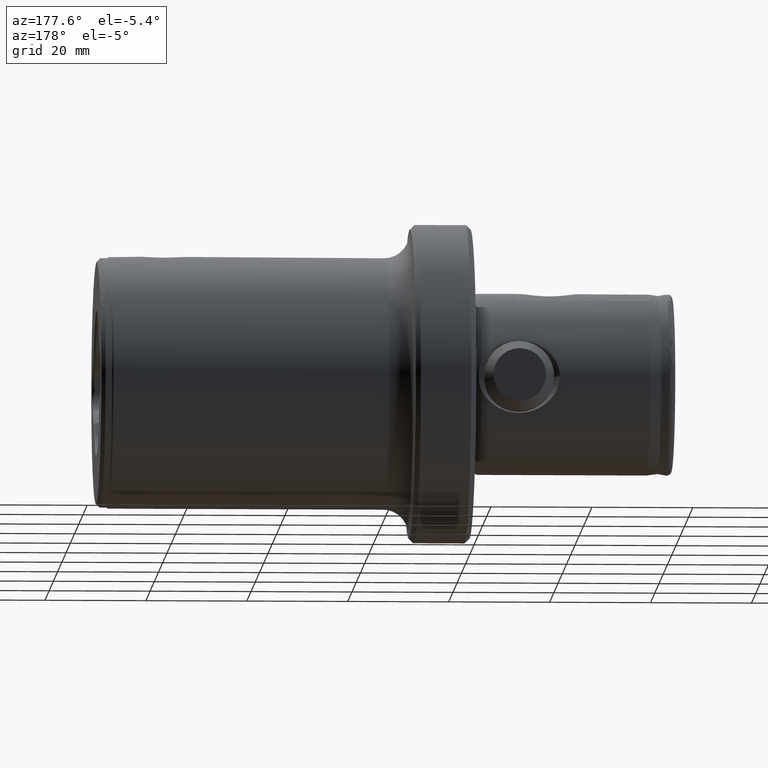
[diagram: clean part render]
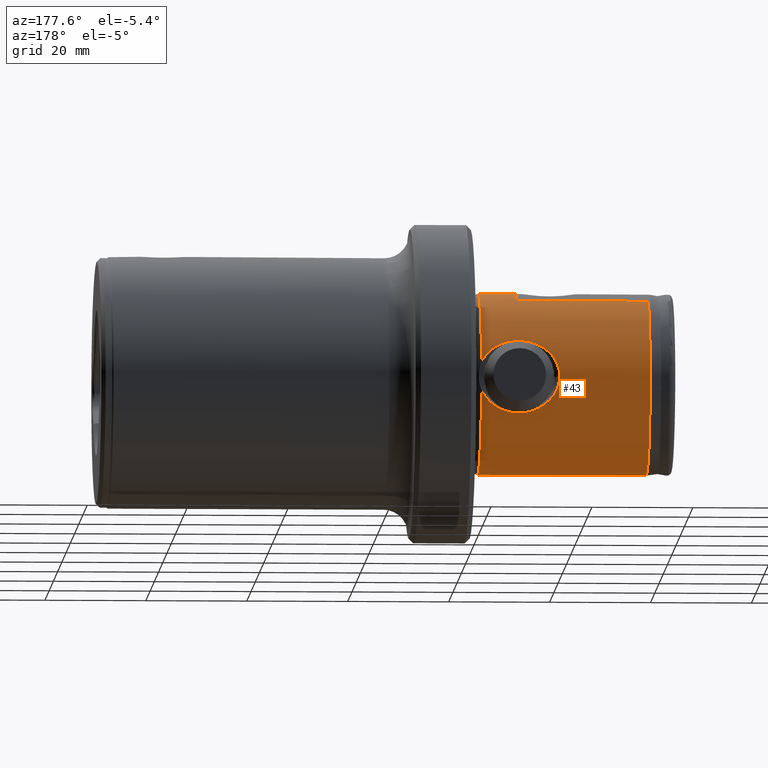
[diagram: same view with one face highlighted and labeled with its STEP entity id]
A machine part, auxiliary view. The second image highlights one B-rep face of the part: STEP entity #43.
In plain terms, the highlighted cylindrical surface (partial cylindrical patch) has radius 18 mm, axis along (-1, -0, -0).
Its self-contained STEP definition (entity closure, byte-faithful):
#11 = B_SPLINE_CURVE_WITH_KNOTS ( 'NONE', 3,
 ( #2662, #2663, #2664, #2665, #2666, #2667, #2668, #2669, #2670, #2671, #2672, #2673, #2674, #2675, #2676, #2677, #2678, #2679, #2680, #2681, #2682, #2683, #2684, #2685, #2686, #2687, #2688, #2689, #2690, #2691, #2692, #2693, #2694, #2695, #2696, #2697, #2698, #2699, #2700, #2701, #2702, #2703, #2704, #2705 ),
 .UNSPECIFIED., .F., .F.,
 ( 4, 2, 2, 2, 2, 2, 2, 2, 2, 2, 2, 2, 2, 2, 2, 2, 2, 2, 2, 2, 2, 4 ),
 ( 0.02115246160344184300, 0.02181163685404289100, 0.02247081210464393900, 0.02312998735524498700, 0.02378916260584603600, 0.02510751310704813600, 0.02576668835764918400, 0.02642586360825023600, 0.02774421410945232500, 0.02906256461065441500, 0.03038091511185650500, 0.03169926561305859400, 0.03301761611426068400, 0.03367679136486172200, 0.03433596661546276000, 0.03565431711666483500, 0.03631349236726586600, 0.03697266761786689700, 0.03829101811906893800, 0.03960936862027097900, 0.04092771912147302700, 0.04224606962267506800 ),
 .UNSPECIFIED. ) ;
#22 = B_SPLINE_CURVE_WITH_KNOTS ( 'NONE', 3,
 ( #3226, #3227, #3228, #3229, #3230, #3231, #3232, #3233, #3234, #3235, #3236, #3237, #3238, #3239, #3240, #3241, #3242, #3243, #3244, #3245, #3246, #3247, #3248, #3249, #3250, #3251, #3252, #3253, #3254, #3255, #3256, #3257, #3258, #3259 ),
 .UNSPECIFIED., .F., .F.,
 ( 4, 2, 2, 2, 2, 2, 2, 2, 2, 2, 2, 2, 2, 2, 2, 2, 4 ),
 ( 4.577879042378773400E-007, 0.001322458026375338200, 0.002644458264846438300, 0.003966458503317538700, 0.005288458741788639400, 0.007932459218730838300, 0.01057645969567304000, 0.01189845993414414100, 0.01322046017261524100, 0.01388146029185079000, 0.01454246041108634000, 0.01586446064955743900, 0.01652546076879299000, 0.01718646088802854000, 0.01850846112649964100, 0.01983046136497073800, 0.02115246160344184300 ),
 .UNSPECIFIED. ) ;
#43 = ADVANCED_FACE ( 'NONE', ( #2041 ), #2042, .T. ) ;
#146 = EDGE_CURVE ( 'NONE', #1739, #1824, #11, .T. ) ;
#177 = EDGE_CURVE ( 'NONE', #1824, #1728, #444, .T. ) ;
#179 = EDGE_CURVE ( 'NONE', #1826, #1787, #3035, .T. ) ;
#200 = EDGE_CURVE ( 'NONE', #1730, #1789, #3055, .T. ) ;
#202 = EDGE_CURVE ( 'NONE', #1728, #1789, #2183, .T. ) ;
#203 = EDGE_CURVE ( 'NONE', #1792, #1730, #2184, .T. ) ;
#204 = EDGE_CURVE ( 'NONE', #1792, #1827, #3060, .T. ) ;
#205 = EDGE_CURVE ( 'NONE', #1826, #1827, #2185, .T. ) ;
#206 = EDGE_CURVE ( 'NONE', #1787, #1739, #22, .T. ) ;
#263 = AXIS2_PLACEMENT_3D ( 'NONE', #1031, #1032, #1033 ) ;
#444 = CIRCLE ( 'NONE', #3037, 17.99999999999999600 ) ;
#695 = ORIENTED_EDGE ( 'NONE', *, *, #177, .T. ) ;
#696 = ORIENTED_EDGE ( 'NONE', *, *, #200, .F. ) ;
#697 = ORIENTED_EDGE ( 'NONE', *, *, #202, .T. ) ;
#698 = ORIENTED_EDGE ( 'NONE', *, *, #203, .F. ) ;
#699 = ORIENTED_EDGE ( 'NONE', *, *, #205, .F. ) ;
#700 = ORIENTED_EDGE ( 'NONE', *, *, #204, .T. ) ;
#701 = ORIENTED_EDGE ( 'NONE', *, *, #179, .T. ) ;
#702 = ORIENTED_EDGE ( 'NONE', *, *, #206, .T. ) ;
#704 = ORIENTED_EDGE ( 'NONE', *, *, #146, .T. ) ;
#1031 = CARTESIAN_POINT ( 'NONE',  ( 0.0000000000000000000, 0.0000000000000000000, 0.0000000000000000000 ) ) ;
#1032 = DIRECTION ( 'NONE',  ( -1.000000000000000000, -0.0000000000000000000, -0.0000000000000000000 ) ) ;
#1033 = DIRECTION ( 'NONE',  ( 0.0000000000000000000, 0.0000000000000000000, 1.000000000000000000 ) ) ;
#1728 = VERTEX_POINT ( 'NONE', #4957 ) ;
#1730 = VERTEX_POINT ( 'NONE', #4959 ) ;
#1739 = VERTEX_POINT ( 'NONE', #4968 ) ;
#1787 = VERTEX_POINT ( 'NONE', #5016 ) ;
#1789 = VERTEX_POINT ( 'NONE', #5018 ) ;
#1792 = VERTEX_POINT ( 'NONE', #5021 ) ;
#1824 = VERTEX_POINT ( 'NONE', #5053 ) ;
#1826 = VERTEX_POINT ( 'NONE', #5055 ) ;
#1827 = VERTEX_POINT ( 'NONE', #5056 ) ;
#1883 = EDGE_LOOP ( 'NONE', ( #695, #697, #696, #698, #700, #699, #701, #702, #704 ) ) ;
#2041 = FACE_OUTER_BOUND ( 'NONE', #1883, .T. ) ;
#2042 = CYLINDRICAL_SURFACE ( 'NONE', #263, 17.99999999999999600 ) ;
#2183 = LINE ( 'NONE', #3024, #3062 ) ;
#2184 = LINE ( 'NONE', #3026, #3063 ) ;
#2185 = LINE ( 'NONE', #3224, #3066 ) ;
#2662 = CARTESIAN_POINT ( 'NONE',  ( 22.93190200199920200, 17.99999999999999600, -3.085024895232098400E-016 ) ) ;
#2663 = CARTESIAN_POINT ( 'NONE',  ( 22.93190200199918700, 18.00000000000001400, -0.2223681862393983300 ) ) ;
#2664 = CARTESIAN_POINT ( 'NONE',  ( 22.94367595310294700, 17.99580027013314200, -0.4471889289731249000 ) ) ;
#2665 = CARTESIAN_POINT ( 'NONE',  ( 22.98988810258071400, 17.97940423527511200, -0.8887230419490950200 ) ) ;
#2666 = CARTESIAN_POINT ( 'NONE',  ( 23.02425016441474200, 17.96723550562960600, -1.106892443189610100 ) ) ;
#2667 = CARTESIAN_POINT ( 'NONE',  ( 23.11478158759929300, 17.93545795733994200, -1.538216647952699300 ) ) ;
#2668 = CARTESIAN_POINT ( 'NONE',  ( 23.17095251667248600, 17.91584822628500000, -1.751371063957981600 ) ) ;
#2669 = CARTESIAN_POINT ( 'NONE',  ( 23.30497479576797200, 17.86964433764415000, -2.172723985473331800 ) ) ;
#2670 = CARTESIAN_POINT ( 'NONE',  ( 23.38329582901154400, 17.84289450996995200, -2.381806135342092700 ) ) ;
#2671 = CARTESIAN_POINT ( 'NONE',  ( 23.64566208641627300, 17.75474333346021900, -2.989419509541596700 ) ) ;
#2672 = CARTESIAN_POINT ( 'NONE',  ( 23.85750885869408600, 17.68523608111670200, -3.371825672240127000 ) ) ;
#2673 = CARTESIAN_POINT ( 'NONE',  ( 24.22687376565739100, 17.57016493283338900, -3.914524254010225900 ) ) ;
#2674 = CARTESIAN_POINT ( 'NONE',  ( 24.35930608591732500, 17.52980924945723400, -4.090973167800264300 ) ) ;
#2675 = CARTESIAN_POINT ( 'NONE',  ( 24.63768963552766800, 17.44745180740874700, -4.429074306236845600 ) ) ;
#2676 = CARTESIAN_POINT ( 'NONE',  ( 24.78358047319914800, 17.40545715193043500, -4.590845063067932900 ) ) ;
#2677 = CARTESIAN_POINT ( 'NONE',  ( 25.24046607749859200, 17.27841695341686900, -5.055640001721180000 ) ) ;
#2678 = CARTESIAN_POINT ( 'NONE',  ( 25.57051944790432400, 17.19230766410023400, -5.338307320903719100 ) ) ;
#2679 = CARTESIAN_POINT ( 'NONE',  ( 26.28103683236056700, 17.02437799103098500, -5.851796466726588300 ) ) ;
#2680 = CARTESIAN_POINT ( 'NONE',  ( 26.65561954242215800, 16.94405153630166100, -6.078050009428259200 ) ) ;
#2681 = CARTESIAN_POINT ( 'NONE',  ( 27.43382822492042900, 16.79854006849519300, -6.469360551794835600 ) ) ;
#2682 = CARTESIAN_POINT ( 'NONE',  ( 27.83873325934378700, 16.73302960472693400, -6.635306235133275400 ) ) ;
#2683 = CARTESIAN_POINT ( 'NONE',  ( 28.68138952076552800, 16.62253385687452200, -6.907455158285630500 ) ) ;
#2684 = CARTESIAN_POINT ( 'NONE',  ( 29.11157131061686700, 16.57868659642610300, -7.010930212151299300 ) ) ;
#2685 = CARTESIAN_POINT ( 'NONE',  ( 29.97935113376584600, 16.51777580569728000, -7.153256191057048200 ) ) ;
#2686 = CARTESIAN_POINT ( 'NONE',  ( 30.41852971967278700, 16.50049754671717000, -7.192609744928046400 ) ) ;
#2687 = CARTESIAN_POINT ( 'NONE',  ( 31.08550284957112800, 16.49607939498169200, -7.202734074813103700 ) ) ;
#2688 = CARTESIAN_POINT ( 'NONE',  ( 31.30974720235422400, 16.49823352362514200, -7.197811783345345700 ) ) ;
#2689 = CARTESIAN_POINT ( 'NONE',  ( 31.75299422472887300, 16.50963188584525600, -7.171628745439576800 ) ) ;
#2690 = CARTESIAN_POINT ( 'NONE',  ( 31.97293723778899000, 16.51885065342714000, -7.150425261665531300 ) ) ;
#2691 = CARTESIAN_POINT ( 'NONE',  ( 32.62784339102091700, 16.55653905059475800, -7.062934800613086300 ) ) ;
#2692 = CARTESIAN_POINT ( 'NONE',  ( 33.05791230149482400, 16.59505067668716500, -6.972935452718093800 ) ) ;
#2693 = CARTESIAN_POINT ( 'NONE',  ( 33.69317158907114200, 16.67064728046171500, -6.789249089393553800 ) ) ;
#2694 = CARTESIAN_POINT ( 'NONE',  ( 33.90419519246361100, 16.69896088935174200, -6.719494189788391300 ) ) ;
#2695 = CARTESIAN_POINT ( 'NONE',  ( 34.31726394228277100, 16.76025306473324900, -6.565121031389974600 ) ) ;
#2696 = CARTESIAN_POINT ( 'NONE',  ( 34.51937693814513600, 16.79320269221629400, -6.480585405933671200 ) ) ;
#2697 = CARTESIAN_POINT ( 'NONE',  ( 35.11280500872538800, 16.89776905071100500, -6.205157255918479100 ) ) ;
#2698 = CARTESIAN_POINT ( 'NONE',  ( 35.49130736388082900, 16.97510437362035400, -5.992625391793065900 ) ) ;
#2699 = CARTESIAN_POINT ( 'NONE',  ( 36.21364680603050300, 17.13888977652443300, -5.506739943906397100 ) ) ;
#2700 = CARTESIAN_POINT ( 'NONE',  ( 36.55892626127641900, 17.22586525208657100, -5.231223017239337000 ) ) ;
#2701 = CARTESIAN_POINT ( 'NONE',  ( 37.18792591636155000, 17.39580606940596000, -4.634874230737757700 ) ) ;
#2702 = CARTESIAN_POINT ( 'NONE',  ( 37.47501851690157800, 17.47947963081396200, -4.312294449917641400 ) ) ;
#2703 = CARTESIAN_POINT ( 'NONE',  ( 37.99157687428586200, 17.63708151982496400, -3.614062402598964100 ) ) ;
#2704 = CARTESIAN_POINT ( 'NONE',  ( 38.22231277592995700, 17.71147340875382200, -3.235347581223297000 ) ) ;
#2705 = CARTESIAN_POINT ( 'NONE',  ( 38.41455850893560600, 17.77522644697580400, -2.835722969320484400 ) ) ;
#2876 = CARTESIAN_POINT ( 'NONE',  ( 38.41455850893560600, 0.0000000000000000000, 0.0000000000000000000 ) ) ;
#2877 = DIRECTION ( 'NONE',  ( -1.000000000000000000, -0.0000000000000000000, -0.0000000000000000000 ) ) ;
#2878 = DIRECTION ( 'NONE',  ( 0.0000000000000000000, 0.0000000000000000000, 1.000000000000000000 ) ) ;
#2885 = CARTESIAN_POINT ( 'NONE',  ( 38.41455850893560600, 0.0000000000000000000, 0.0000000000000000000 ) ) ;
#2886 = DIRECTION ( 'NONE',  ( -1.000000000000000000, -0.0000000000000000000, -0.0000000000000000000 ) ) ;
#2887 = DIRECTION ( 'NONE',  ( 0.0000000000000000000, 0.0000000000000000000, 1.000000000000000000 ) ) ;
#3019 = CARTESIAN_POINT ( 'NONE',  ( 5.000000000000000000, 0.0000000000000000000, 0.0000000000000000000 ) ) ;
#3020 = DIRECTION ( 'NONE',  ( -1.000000000000000000, -0.0000000000000000000, -0.0000000000000000000 ) ) ;
#3021 = DIRECTION ( 'NONE',  ( 0.0000000000000000000, 0.0000000000000000000, 1.000000000000000000 ) ) ;
#3024 = CARTESIAN_POINT ( 'NONE',  ( 0.0000000000000000000, 2.204364238465235000E-015, -17.99999999999999600 ) ) ;
#3025 = DIRECTION ( 'NONE',  ( -1.000000000000000000, -0.0000000000000000000, -0.0000000000000000000 ) ) ;
#3026 = CARTESIAN_POINT ( 'NONE',  ( 0.0000000000000000000, 8.500000000000001800, 15.86663165262242400 ) ) ;
#3027 = DIRECTION ( 'NONE',  ( -1.000000000000000000, -0.0000000000000000000, -0.0000000000000000000 ) ) ;
#3028 = CARTESIAN_POINT ( 'NONE',  ( 31.00000000000000000, 0.0000000000000000000, 0.0000000000000000000 ) ) ;
#3029 = DIRECTION ( 'NONE',  ( 1.000000000000000000, 0.0000000000000000000, 0.0000000000000000000 ) ) ;
#3035 = CIRCLE ( 'NONE', #3038, 17.99999999999999600 ) ;
#3037 = AXIS2_PLACEMENT_3D ( 'NONE', #2876, #2877, #2878 ) ;
#3038 = AXIS2_PLACEMENT_3D ( 'NONE', #2885, #2886, #2887 ) ;
#3055 = CIRCLE ( 'NONE', #3059, 17.99999999999999600 ) ;
#3059 = AXIS2_PLACEMENT_3D ( 'NONE', #3019, #3020, #3021 ) ;
#3060 = CIRCLE ( 'NONE', #3064, 17.99999999999999600 ) ;
#3062 = VECTOR ( 'NONE', #3025, 1000.000000000000000 ) ;
#3063 = VECTOR ( 'NONE', #3027, 1000.000000000000000 ) ;
#3064 = AXIS2_PLACEMENT_3D ( 'NONE', #3028, #3029, #3223 ) ;
#3066 = VECTOR ( 'NONE', #3225, 1000.000000000000000 ) ;
#3223 = DIRECTION ( 'NONE',  ( 0.0000000000000000000, 0.0000000000000000000, -1.000000000000000000 ) ) ;
#3224 = CARTESIAN_POINT ( 'NONE',  ( 0.0000000000000000000, 0.0000000000000000000, 17.99999999999999600 ) ) ;
#3225 = DIRECTION ( 'NONE',  ( -1.000000000000000000, -0.0000000000000000000, -0.0000000000000000000 ) ) ;
#3226 = CARTESIAN_POINT ( 'NONE',  ( 38.41455850893560600, 17.77522644697580400, 2.835722969320480000 ) ) ;
#3227 = CARTESIAN_POINT ( 'NONE',  ( 38.22202641015763900, 17.71137844337932800, 3.235942854828800300 ) ) ;
#3228 = CARTESIAN_POINT ( 'NONE',  ( 37.99507072658234800, 17.63819116553966600, 3.608611484859323100 ) ) ;
#3229 = CARTESIAN_POINT ( 'NONE',  ( 37.48000134479384800, 17.48095693202913700, 4.306275557987745200 ) ) ;
#3230 = CARTESIAN_POINT ( 'NONE',  ( 37.19181581959279000, 17.39685469061269500, 4.631205550346413300 ) ) ;
#3231 = CARTESIAN_POINT ( 'NONE',  ( 36.55468267699610900, 17.22472107593113900, 5.235227008662172400 ) ) ;
#3232 = CARTESIAN_POINT ( 'NONE',  ( 36.21322769332759600, 17.13878982586033600, 5.507046361843748600 ) ) ;
#3233 = CARTESIAN_POINT ( 'NONE',  ( 35.49110008079966100, 16.97506229770262100, 5.992740301033030900 ) ) ;
#3234 = CARTESIAN_POINT ( 'NONE',  ( 35.10789554115508100, 16.89673571953524700, 6.208021203796718600 ) ) ;
#3235 = CARTESIAN_POINT ( 'NONE',  ( 33.90767941334524900, 16.68575959259133200, 6.763301545005889500 ) ) ;
#3236 = CARTESIAN_POINT ( 'NONE',  ( 33.06418919238631600, 16.58110238672853500, 7.005946324575756300 ) ) ;
#3237 = CARTESIAN_POINT ( 'NONE',  ( 31.29240741784634100, 16.48024312334202100, 7.240015666940879900 ) ) ;
#3238 = CARTESIAN_POINT ( 'NONE',  ( 30.41020211864762500, 16.48695642536555200, 7.225324597065637500 ) ) ;
#3239 = CARTESIAN_POINT ( 'NONE',  ( 29.09236604569099100, 16.58033015242459700, 7.007061721065089600 ) ) ;
#3240 = CARTESIAN_POINT ( 'NONE',  ( 28.66104706392764000, 16.62489959843416200, 6.901745302739102300 ) ) ;
#3241 = CARTESIAN_POINT ( 'NONE',  ( 27.82750759339947400, 16.73481497316496600, 6.630787486854876200 ) ) ;
#3242 = CARTESIAN_POINT ( 'NONE',  ( 27.42298261577181200, 16.80032814206620300, 6.464797898938754500 ) ) ;
#3243 = CARTESIAN_POINT ( 'NONE',  ( 26.83486332975320500, 16.91066245934652600, 6.167710642925290400 ) ) ;
#3244 = CARTESIAN_POINT ( 'NONE',  ( 26.64157620203354400, 16.94955171960911500, 6.060299734026399300 ) ) ;
#3245 = CARTESIAN_POINT ( 'NONE',  ( 26.26807447496163000, 17.02921293655130000, 5.832704614802511700 ) ) ;
#3246 = CARTESIAN_POINT ( 'NONE',  ( 26.08701584136920800, 17.07013154472707200, 5.712141590260361400 ) ) ;
#3247 = CARTESIAN_POINT ( 'NONE',  ( 25.56070703825800200, 17.19484585362744500, 5.330017455493422300 ) ) ;
#3248 = CARTESIAN_POINT ( 'NONE',  ( 25.23217109824212700, 17.28061527093933600, 5.048216595888842300 ) ) ;
#3249 = CARTESIAN_POINT ( 'NONE',  ( 24.77460461053108900, 17.40800939251689900, 4.581184096426453000 ) ) ;
#3250 = CARTESIAN_POINT ( 'NONE',  ( 24.62724907952211600, 17.45048579386305600, 4.417122096926798100 ) ) ;
#3251 = CARTESIAN_POINT ( 'NONE',  ( 24.34938088761634500, 17.53280446781713000, 4.078135548785402500 ) ) ;
#3252 = CARTESIAN_POINT ( 'NONE',  ( 24.21894353323254400, 17.57260398758735700, 3.903507979642048700 ) ) ;
#3253 = CARTESIAN_POINT ( 'NONE',  ( 23.85309246069682100, 17.68667767651107100, 3.364011678637011100 ) ) ;
#3254 = CARTESIAN_POINT ( 'NONE',  ( 23.64288762371046100, 17.75566459521486700, 2.983681196165115100 ) ) ;
#3255 = CARTESIAN_POINT ( 'NONE',  ( 23.29528484649193100, 17.87247591824912300, 2.177288049322133800 ) ) ;
#3256 = CARTESIAN_POINT ( 'NONE',  ( 23.15830401345507600, 17.92017665140759400, 1.747722691840148500 ) ) ;
#3257 = CARTESIAN_POINT ( 'NONE',  ( 22.97804128174148600, 17.98345985487322500, 0.8845549578120589500 ) ) ;
#3258 = CARTESIAN_POINT ( 'NONE',  ( 22.93190200199918400, 18.00000000000001100, 0.4459675859626653900 ) ) ;
#3259 = CARTESIAN_POINT ( 'NONE',  ( 22.93190200199920200, 17.99999999999999600, -3.085024895232098400E-016 ) ) ;
#4957 = CARTESIAN_POINT ( 'NONE',  ( 38.41455850893560600, 2.204364238465235000E-015, -17.99999999999999600 ) ) ;
#4959 = CARTESIAN_POINT ( 'NONE',  ( 5.000000000000000000, 8.500000000000001800, 15.86663165262242400 ) ) ;
#4968 = CARTESIAN_POINT ( 'NONE',  ( 22.93190200199920200, 17.99999999999999600, -3.085024895232098400E-016 ) ) ;
#5016 = CARTESIAN_POINT ( 'NONE',  ( 38.41455850893560600, 17.77522644697580400, 2.835722969320480000 ) ) ;
#5018 = CARTESIAN_POINT ( 'NONE',  ( 5.000000000000000000, 2.204364238465235000E-015, -17.99999999999999600 ) ) ;
#5021 = CARTESIAN_POINT ( 'NONE',  ( 31.00000000000000000, 8.500000000000001800, 15.86663165262242400 ) ) ;
#5053 = CARTESIAN_POINT ( 'NONE',  ( 38.41455850893560600, 17.77522644697580400, -2.835722969320484400 ) ) ;
#5055 = CARTESIAN_POINT ( 'NONE',  ( 38.41455850893560600, 0.0000000000000000000, 17.99999999999999600 ) ) ;
#5056 = CARTESIAN_POINT ( 'NONE',  ( 31.00000000000000000, 0.0000000000000000000, 17.99999999999999600 ) ) ;